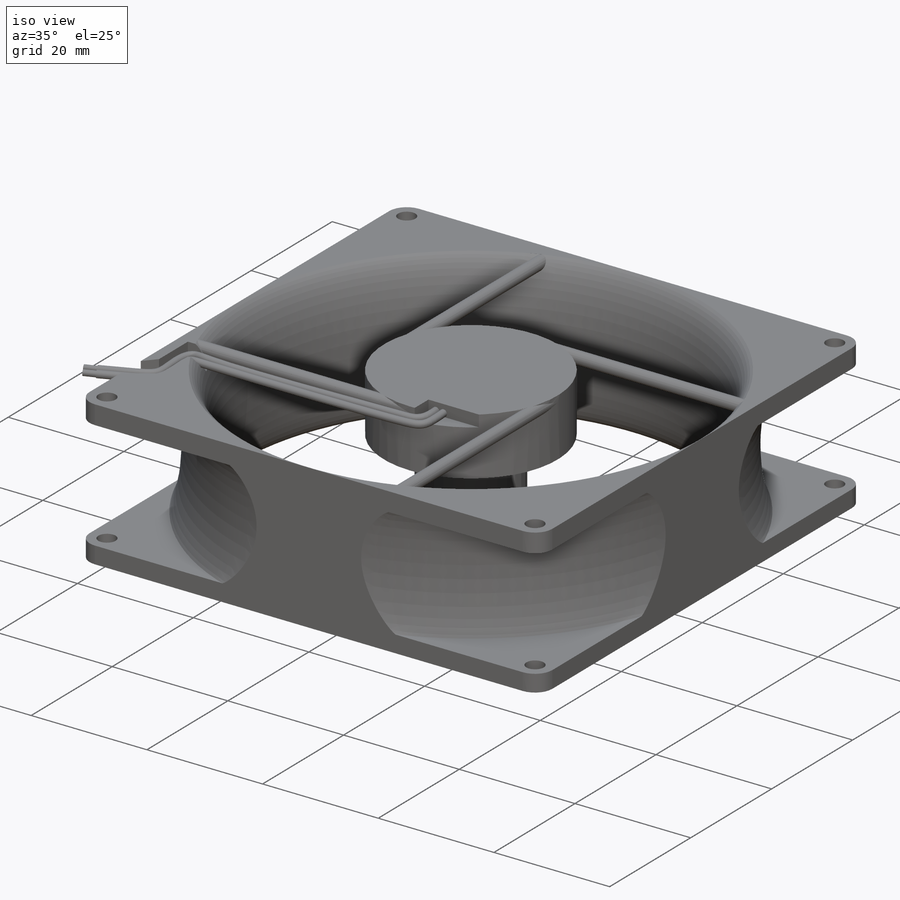
[diagram: iso view]
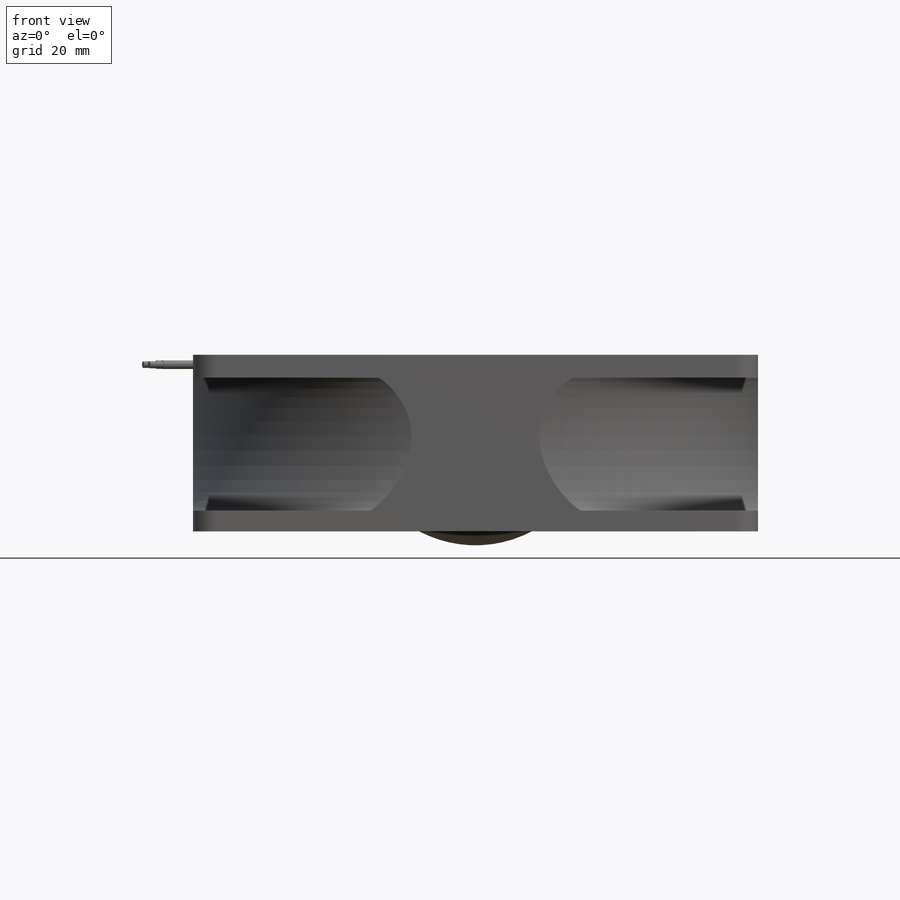
[diagram: front view]
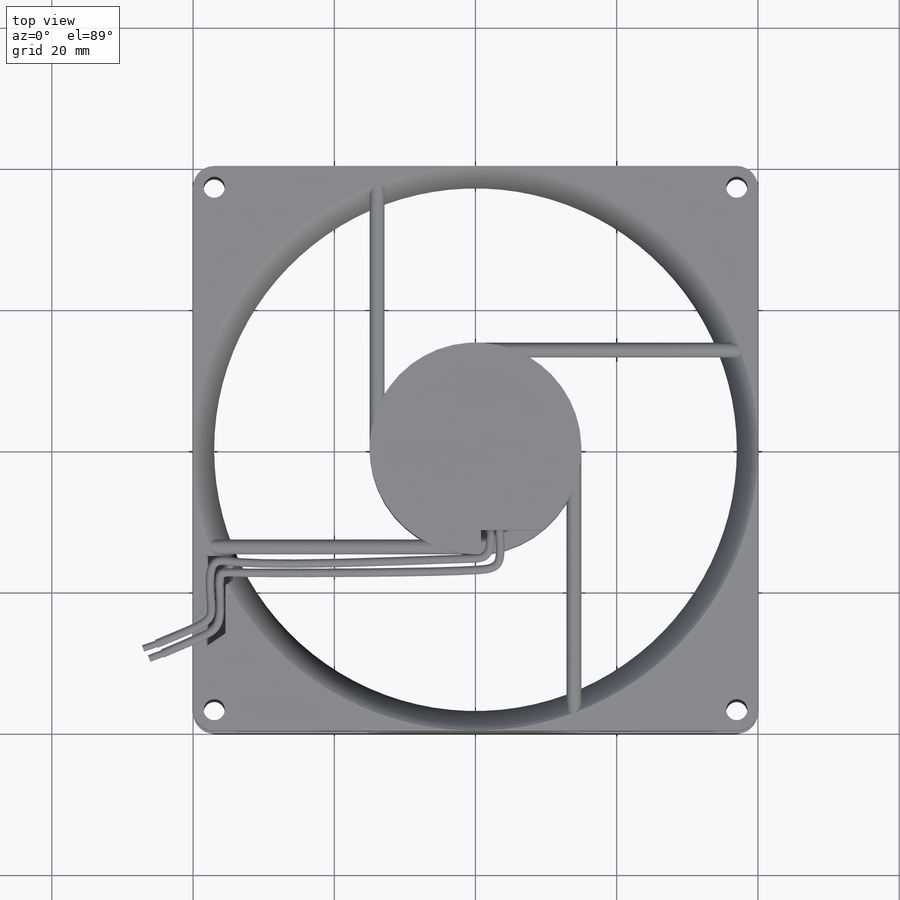
[diagram: top view]
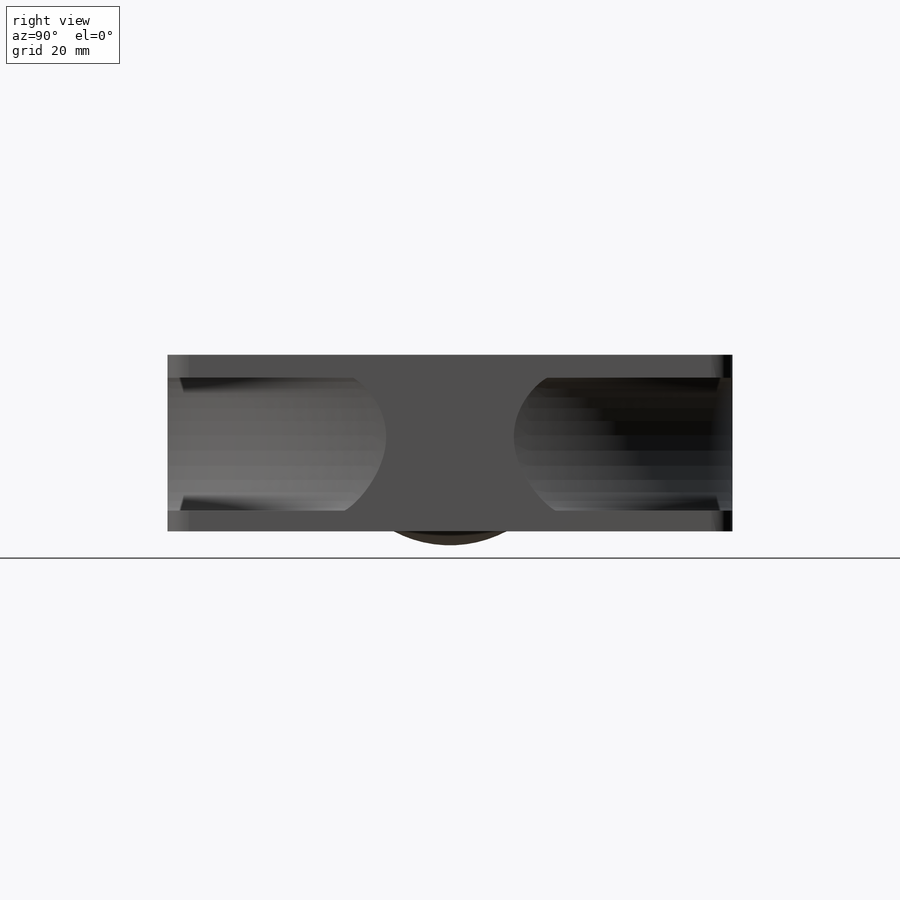
[diagram: right view]
SOLIDWORKS PART (.sldprt)
format: sldprt  version: not decoded by parser v0  size: 849,920 bytes
history: native  units: mm
features: sketch x21, extrude x5, cut_extrude x4, cut_revolve x2, plane x2, pattern_circular x2, sweep x2, material x1, dome x1 (+12 scaffold rows collapsed)
feature tree (52):
  scaffold x12  (default folders/planes/origin — collapsed)
  material  "ABS"
  sketch  "Sketch1"  dims[D3=3.0mm D1=80.0mm D2=80.0mm]
  extrude  "Boss-Extrude1"  Depth=25mm
  sketch  "Sketch2"  dims[D1=~31.132175mm]
  cut_revolve  "Cut-Revolve1"  Angle=360deg
  sketch  "Sketch3"  dims[D1=~22.357353mm]
  extrude  "Boss-Extrude2"  Depth=25mm
  sketch  "Sketch4"  dims[D1=~7.776037mm]
  cut_extrude  "Cut-Extrude1"  Depth=15mm
  sketch  "Sketch5"  dims[D1=10.0mm D2=7.5mm]
  plane  "Plane1"  Offset=12.5mm
  sketch  "Sketch7"  dims[D1=0.5mm]
  sketch  "Sketch8"
  sketch  "3DSketch1"
  sketch  "3DSketch2"
  pattern_circular  "CirPattern4"  Count=7 Angle=360deg
  sketch  "Sketch9"
  extrude  "Boss-Extrude3"  [1 undecoded]
  pattern_circular  "CirPattern5"  Count=4 Angle=360deg
  sketch  "Sketch10"
  plane  "Plane2"
  sketch  "Sketch11"  dims[D1=4.0mm]
  cut_revolve  "Cut-Revolve2"  Angle=360deg
  sketch  "Sketch12"  dims[D1=~1.676773mm]
  cut_extrude  "Cut-Extrude2"  [1 undecoded]
  sketch  "Sketch13"
  cut_extrude  "Cut-Extrude3"  Depth=3.2mm
  sketch  "Sketch14"
  cut_extrude  "Cut-Extrude4"  Depth=2mm
  sketch  "Sketch15"
  sketch  "Sketch16"
  sweep  "Sweep2"
  sketch  "Sketch17"
  sketch  "Sketch18"
  sweep  "Sweep11"
  sketch  "Sketch19"
  sketch  "Sketch20"
  extrude  "Boss-Extrude4"  Depth=2mm
  extrude  "Boss-Extrude5"  Depth=2mm
  dome  "Dome1"
decode coverage: 19 of 37 modeling features carry decoded parameters
note: ~ marks probable driven/reference dimensions
note: 2 parameter values undecoded
note: suppression state not decoded; provenance and decode notes live in map.json
